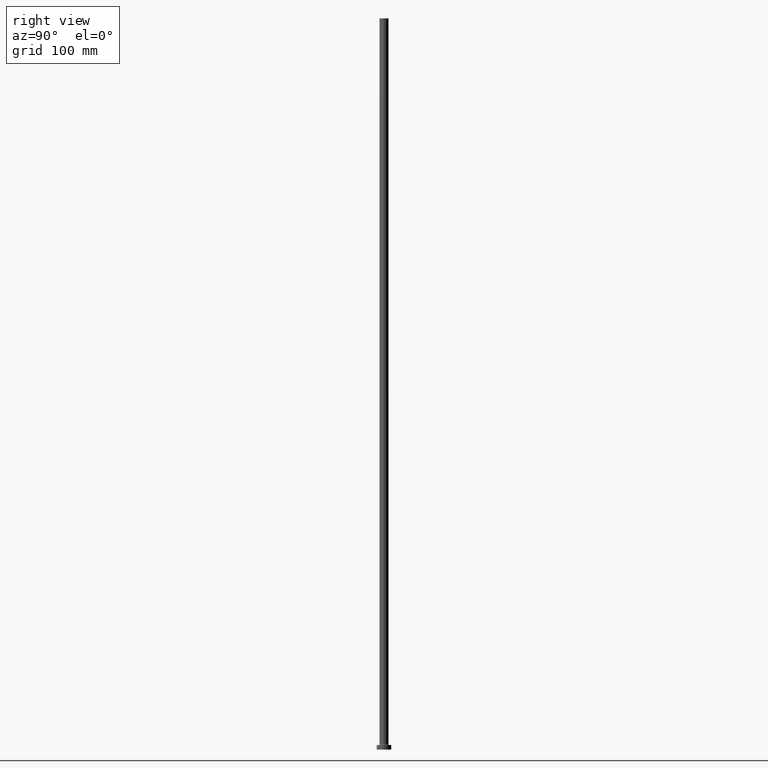
[diagram: clean part render]
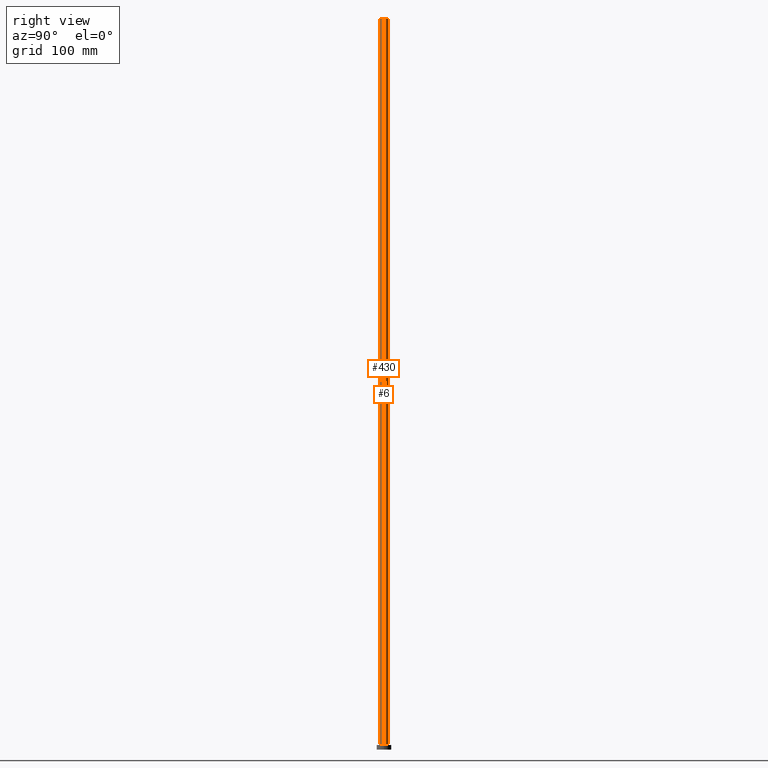
[diagram: same view with one multi-face feature highlighted, each face labeled with its STEP entity id]
A machine part, right view. The highlighted faces form ONE feature: a constant-radius fillet chain: 2 tangent blend faces with common blend radius 5 mm. The faces share edges in the B-rep.
Their STEP definitions:
[1] entity #6 (Cylinder):
#6 = ADVANCED_FACE ( 'NONE', ( #340 ), #17, .T. ) ;
#11 = VECTOR ( 'NONE', #412, 1000.000000000000000 ) ;
#17 = CYLINDRICAL_SURFACE ( 'NONE', #224, 5.000000000000000000 ) ;
#33 = CARTESIAN_POINT ( 'NONE',  ( 0.000000000000000000, 0.000000000000000000, 800.0000000000000000 ) ) ;
#49 = CARTESIAN_POINT ( 'NONE',  ( -5.000000000000000000, 0.000000000000000000, 5.499999999999949374 ) ) ;
#60 = DIRECTION ( 'NONE',  ( -1.000000000000000000, 0.000000000000000000, 0.000000000000000000 ) ) ;
#70 = CARTESIAN_POINT ( 'NONE',  ( 5.000000000000000000, 6.123233995736766282E-16, 800.0000000000000000 ) ) ;
#74 = CIRCLE ( 'NONE', #100, 5.000000000000000000 ) ;
#100 = AXIS2_PLACEMENT_3D ( 'NONE', #33, #179, #309 ) ;
#114 = CARTESIAN_POINT ( 'NONE',  ( 5.000000000000000000, 6.123233995736766282E-16, 800.0000000000000000 ) ) ;
#123 = EDGE_CURVE ( 'NONE', #287, #126, #74, .T. ) ;
#126 = VERTEX_POINT ( 'NONE', #146 ) ;
#130 = DIRECTION ( 'NONE',  ( -0.000000000000000000, -0.000000000000000000, -1.000000000000000000 ) ) ;
#133 = EDGE_CURVE ( 'NONE', #287, #356, #455, .T. ) ;
#146 = CARTESIAN_POINT ( 'NONE',  ( -5.000000000000000000, 0.000000000000000000, 800.0000000000000000 ) ) ;
#150 = VERTEX_POINT ( 'NONE', #49 ) ;
#158 = AXIS2_PLACEMENT_3D ( 'NONE', #263, #369, #367 ) ;
#163 = CARTESIAN_POINT ( 'NONE',  ( 0.000000000000000000, 0.000000000000000000, 800.0000000000000000 ) ) ;
#179 = DIRECTION ( 'NONE',  ( 0.000000000000000000, 0.000000000000000000, 1.000000000000000000 ) ) ;
#215 = EDGE_CURVE ( 'NONE', #356, #150, #246, .T. ) ;
#224 = AXIS2_PLACEMENT_3D ( 'NONE', #163, #130, #60 ) ;
#246 = CIRCLE ( 'NONE', #158, 5.000000000000000000 ) ;
#253 = EDGE_CURVE ( 'NONE', #126, #150, #372, .T. ) ;
#263 = CARTESIAN_POINT ( 'NONE',  ( 0.000000000000000000, 0.000000000000000000, 5.499999999999949374 ) ) ;
#264 = ORIENTED_EDGE ( 'NONE', *, *, #133, .T. ) ;
#278 = DIRECTION ( 'NONE',  ( -0.000000000000000000, -0.000000000000000000, -1.000000000000000000 ) ) ;
#281 = ORIENTED_EDGE ( 'NONE', *, *, #215, .T. ) ;
#286 = EDGE_LOOP ( 'NONE', ( #433, #264, #281, #317 ) ) ;
#287 = VERTEX_POINT ( 'NONE', #70 ) ;
#309 = DIRECTION ( 'NONE',  ( 1.000000000000000000, 0.000000000000000000, 0.000000000000000000 ) ) ;
#317 = ORIENTED_EDGE ( 'NONE', *, *, #253, .F. ) ;
#338 = CARTESIAN_POINT ( 'NONE',  ( -5.000000000000000000, 0.000000000000000000, 800.0000000000000000 ) ) ;
#340 = FACE_OUTER_BOUND ( 'NONE', #286, .T. ) ;
#356 = VERTEX_POINT ( 'NONE', #425 ) ;
#367 = DIRECTION ( 'NONE',  ( 1.000000000000000000, 0.000000000000000000, 0.000000000000000000 ) ) ;
#369 = DIRECTION ( 'NONE',  ( 0.000000000000000000, 0.000000000000000000, 1.000000000000000000 ) ) ;
#372 = LINE ( 'NONE', #338, #11 ) ;
#389 = VECTOR ( 'NONE', #278, 1000.000000000000000 ) ;
#412 = DIRECTION ( 'NONE',  ( -0.000000000000000000, -0.000000000000000000, -1.000000000000000000 ) ) ;
#425 = CARTESIAN_POINT ( 'NONE',  ( 5.000000000000000000, 6.123233995736766282E-16, 5.499999999999949374 ) ) ;
#433 = ORIENTED_EDGE ( 'NONE', *, *, #123, .F. ) ;
#455 = LINE ( 'NONE', #114, #389 ) ;
[2] entity #430 (Cylinder):
#5 = ORIENTED_EDGE ( 'NONE', *, *, #210, .T. ) ;
#7 = ORIENTED_EDGE ( 'NONE', *, *, #133, .F. ) ;
#11 = VECTOR ( 'NONE', #412, 1000.000000000000000 ) ;
#49 = CARTESIAN_POINT ( 'NONE',  ( -5.000000000000000000, 0.000000000000000000, 5.499999999999949374 ) ) ;
#54 = FACE_OUTER_BOUND ( 'NONE', #254, .T. ) ;
#70 = CARTESIAN_POINT ( 'NONE',  ( 5.000000000000000000, 6.123233995736766282E-16, 800.0000000000000000 ) ) ;
#80 = CIRCLE ( 'NONE', #429, 5.000000000000000000 ) ;
#93 = CARTESIAN_POINT ( 'NONE',  ( 0.000000000000000000, 0.000000000000000000, 800.0000000000000000 ) ) ;
#114 = CARTESIAN_POINT ( 'NONE',  ( 5.000000000000000000, 6.123233995736766282E-16, 800.0000000000000000 ) ) ;
#126 = VERTEX_POINT ( 'NONE', #146 ) ;
#133 = EDGE_CURVE ( 'NONE', #287, #356, #455, .T. ) ;
#137 = DIRECTION ( 'NONE',  ( 1.000000000000000000, 0.000000000000000000, 0.000000000000000000 ) ) ;
#140 = AXIS2_PLACEMENT_3D ( 'NONE', #332, #270, #231 ) ;
#146 = CARTESIAN_POINT ( 'NONE',  ( -5.000000000000000000, 0.000000000000000000, 800.0000000000000000 ) ) ;
#150 = VERTEX_POINT ( 'NONE', #49 ) ;
#198 = CYLINDRICAL_SURFACE ( 'NONE', #140, 5.000000000000000000 ) ;
#210 = EDGE_CURVE ( 'NONE', #150, #356, #80, .T. ) ;
#226 = ORIENTED_EDGE ( 'NONE', *, *, #253, .T. ) ;
#230 = DIRECTION ( 'NONE',  ( 0.000000000000000000, 0.000000000000000000, 1.000000000000000000 ) ) ;
#231 = DIRECTION ( 'NONE',  ( -1.000000000000000000, 0.000000000000000000, 0.000000000000000000 ) ) ;
#253 = EDGE_CURVE ( 'NONE', #126, #150, #372, .T. ) ;
#254 = EDGE_LOOP ( 'NONE', ( #7, #283, #226, #5 ) ) ;
#270 = DIRECTION ( 'NONE',  ( -0.000000000000000000, -0.000000000000000000, -1.000000000000000000 ) ) ;
#278 = DIRECTION ( 'NONE',  ( -0.000000000000000000, -0.000000000000000000, -1.000000000000000000 ) ) ;
#283 = ORIENTED_EDGE ( 'NONE', *, *, #421, .F. ) ;
#287 = VERTEX_POINT ( 'NONE', #70 ) ;
#291 = AXIS2_PLACEMENT_3D ( 'NONE', #93, #446, #137 ) ;
#294 = CARTESIAN_POINT ( 'NONE',  ( 0.000000000000000000, 0.000000000000000000, 5.499999999999949374 ) ) ;
#332 = CARTESIAN_POINT ( 'NONE',  ( 0.000000000000000000, 0.000000000000000000, 800.0000000000000000 ) ) ;
#338 = CARTESIAN_POINT ( 'NONE',  ( -5.000000000000000000, 0.000000000000000000, 800.0000000000000000 ) ) ;
#356 = VERTEX_POINT ( 'NONE', #425 ) ;
#372 = LINE ( 'NONE', #338, #11 ) ;
#389 = VECTOR ( 'NONE', #278, 1000.000000000000000 ) ;
#399 = DIRECTION ( 'NONE',  ( 1.000000000000000000, 0.000000000000000000, 0.000000000000000000 ) ) ;
#412 = DIRECTION ( 'NONE',  ( -0.000000000000000000, -0.000000000000000000, -1.000000000000000000 ) ) ;
#421 = EDGE_CURVE ( 'NONE', #126, #287, #450, .T. ) ;
#425 = CARTESIAN_POINT ( 'NONE',  ( 5.000000000000000000, 6.123233995736766282E-16, 5.499999999999949374 ) ) ;
#429 = AXIS2_PLACEMENT_3D ( 'NONE', #294, #230, #399 ) ;
#430 = ADVANCED_FACE ( 'NONE', ( #54 ), #198, .T. ) ;
#446 = DIRECTION ( 'NONE',  ( 0.000000000000000000, 0.000000000000000000, 1.000000000000000000 ) ) ;
#450 = CIRCLE ( 'NONE', #291, 5.000000000000000000 ) ;
#455 = LINE ( 'NONE', #114, #389 ) ;